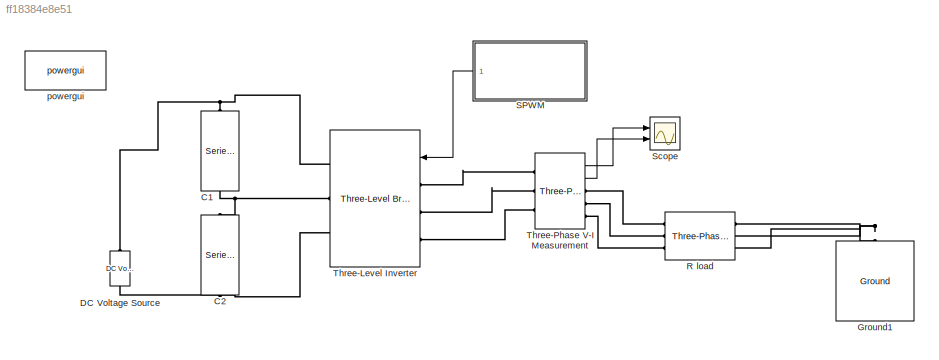
MODEL slx_ff18384e8e51
KIND model
CONFIG AbsTol = auto
CONFIG EnableMultiTasking = off
CONFIG FixedStep = auto
CONFIG MaxStep = auto
CONFIG MinStep = auto
CONFIG RelTol = 1e-3
CONFIG SampleTimeConstraint = Unconstrained
CONFIG SolverName = VariableStepAuto
CONFIG StartTime = 0.0
CONFIG StopTime = 1
BLOCK [Reference] C1  REF=spsSeriesRLCBranchLib/Series RLC Branch
  NameLocation = left
  Ports = [0, 0, 0, 0, 0, 1, 1]
  SourceBlock = spsSeriesRLCBranchLib/Series RLC Branch
  SourceProductBaseCode = PS
  SourceType = Series RLC Branch
BLOCK [Reference] C2  REF=spsSeriesRLCBranchLib/Series RLC Branch
  NameLocation = left
  Ports = [0, 0, 0, 0, 0, 1, 1]
  SourceBlock = spsSeriesRLCBranchLib/Series RLC Branch
  SourceProductBaseCode = PS
  SourceType = Series RLC Branch
BLOCK [Reference] DC Voltage Source  REF=spsDCVoltageSourceLib/DC Voltage Source
  Ports = [0, 0, 0, 0, 0, 1, 1]
  SourceBlock = spsDCVoltageSourceLib/DC Voltage Source
  SourceProductBaseCode = PS
  SourceType = DC Voltage Source
BLOCK [Reference] Ground1  REF=spsGroundLib/Ground
  NameLocation = right
  Ports = [0, 0, 0, 0, 0, 1]
  SourceBlock = spsGroundLib/Ground
  SourceProductBaseCode = PS
  SourceType = Ground
BLOCK [Reference] R load  REF=spsThreePhaseParallelRLCBranchLib/Three-Phase
Parallel RLC Branch
  AttributesFormatString = \n
  Ports = [0, 0, 0, 0, 0, 3, 3]
  SourceBlock = spsThreePhaseParallelRLCBranchLib/Three-Phase\nParallel RLC Branch
  SourceProductBaseCode = PS
  SourceType = Three-Phase Parallel RLC Branch
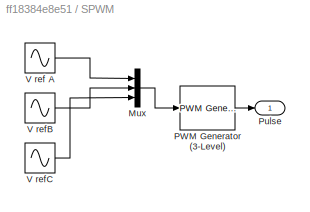
BLOCK [SubSystem] SPWM
  NameLocation = top
  Ports = [0, 1]
  RequestExecContextInheritance = off
BLOCK [Mux] SPWM/Mux
  DisplayOption = bar
  Inputs = 3
  Ports = [3, 1]
BLOCK [Reference] SPWM/PWM Generator (3-Level)  REF=spsPWMGenerator3LevelLib/PWM Generator
(3-Level)
  Ports = [1, 1]
  SourceBlock = spsPWMGenerator3LevelLib/PWM Generator\n(3-Level)
  SourceProductBaseCode = PS
  SourceType = PWM Generator (3-Level)
BLOCK [Outport] SPWM/Pulse
BLOCK [Sin] SPWM/V ref A
  Frequency = 2*pi*50
  Ports = [0, 1]
  SampleTime = 0
BLOCK [Sin] SPWM/V refB
  Frequency = 2*pi*50
  Phase = 2*pi/3
  Ports = [0, 1]
  SampleTime = 0
BLOCK [Sin] SPWM/V refC
  Frequency = 2*pi*50
  Phase = 4*pi/3
  Ports = [0, 1]
  SampleTime = 0
BLOCK [Scope] Scope
  Floating = off
  NumInputPorts = 2
  Ports = [2]
  ScopeSpecificationString = Simulink.scopes.TimeScopeBlockCfg('CurrentConfiguration', extmgr.ConfigurationSet(extmgr.Configuration('Core','General UI',true),extmgr.Configuration('Core','Source UI',true),extmgr.Configuration('Sources','WiredSimulink',true),extmgr.Configuration('Visuals','Time Domain',true,'SerializedDisplays',{struct('MinYLimReal','-287.49943','MaxYLimReal','287.49944','YLabelReal','','MinYLimMag',' 0.00000',...<+1619ch>
BLOCK [Reference] Three-Level Inverter  REF=spsThreeLevelBridgeLib/Three-Level Bridge
  NameLocation = top
  Ports = [1, 0, 0, 0, 0, 3, 3]
  SourceBlock = spsThreeLevelBridgeLib/Three-Level Bridge
  SourceProductBaseCode = PS
  SourceType = Three-Level Bridge
BLOCK [Reference] Three-Phase V-I Measurement  REF=spsThreePhaseVIMeasurementLib/Three-Phase
V-I Measurement
  Ports = [0, 2, 0, 0, 0, 3, 3]
  SourceBlock = spsThreePhaseVIMeasurementLib/Three-Phase\nV-I Measurement
  SourceProductBaseCode = PS
  SourceType = Three-Phase VI Measurement
BLOCK [Reference] powergui  REF=spspowerguiLib/powergui
  Ports = []
  Priority = 1
  SourceBlock = spspowerguiLib/powergui
  SourceProductBaseCode = PS
  SourceType = PSB option menu block
LINE SPWM/Mux:1 -> SPWM/PWM Generator (3-Level):1
LINE SPWM/PWM Generator (3-Level):1 -> SPWM/Pulse:1
LINE SPWM/V ref A:1 -> SPWM/Mux:1
LINE SPWM/V refB:1 -> SPWM/Mux:2
LINE SPWM/V refC:1 -> SPWM/Mux:3
LINE SPWM:1 -> Three-Level Inverter:1
LINE Three-Phase V-I Measurement:1 -> Scope:1
LINE Three-Phase V-I Measurement:2 -> Scope:2
PNET net1: C1:LConn1 -- DC Voltage Source:RConn1 -- Three-Level Inverter:RConn1
PNET net2: C1:RConn1 -- C2:LConn1 -- Three-Level Inverter:RConn2
PNET net3: C2:RConn1 -- DC Voltage Source:LConn1 -- Three-Level Inverter:RConn3
PNET net4: Ground1:LConn1 -- R load:RConn1 -- R load:RConn2 -- R load:RConn3
PLINE R load:LConn1 -- Three-Phase V-I Measurement:RConn1
PLINE R load:LConn2 -- Three-Phase V-I Measurement:RConn2
PLINE R load:LConn3 -- Three-Phase V-I Measurement:RConn3
PLINE Three-Level Inverter:LConn1 -- Three-Phase V-I Measurement:LConn1
PLINE Three-Level Inverter:LConn2 -- Three-Phase V-I Measurement:LConn2
PLINE Three-Level Inverter:LConn3 -- Three-Phase V-I Measurement:LConn3
note: PNET lines group multi-terminal physical nets as a canonical sorted terminal list (undirected conserving connections); 2-terminal nets keep the pairwise PLINE form
